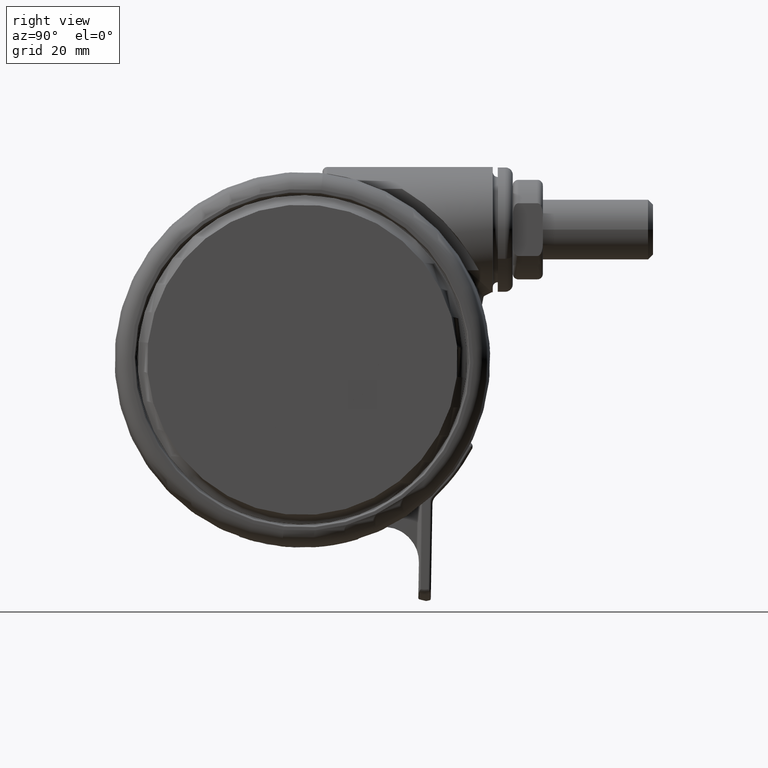
[diagram: clean part render]
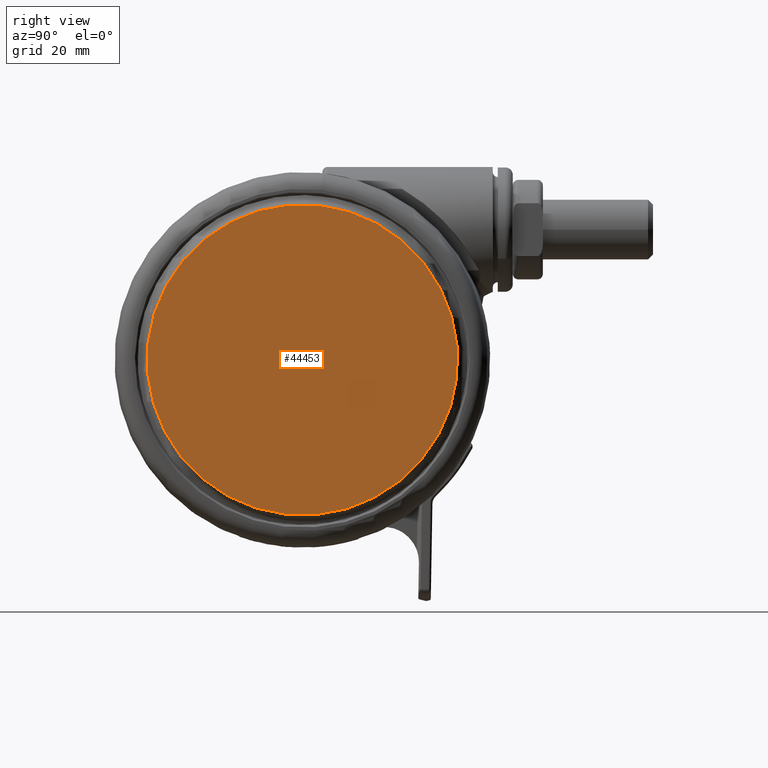
[diagram: same view with one face highlighted and labeled with its STEP entity id]
A machine part, right view. The second image highlights one B-rep face of the part: STEP entity #44453.
In plain terms, the highlighted planar face has unit normal (-1, -0, 0).
Its self-contained STEP definition (entity closure, byte-faithful):
#408 = VERTEX_POINT ( 'NONE', #9133 ) ;
#746 = DIRECTION ( 'NONE',  ( 0.0000000000000000000, 0.0000000000000000000, 1.000000000000000000 ) ) ;
#1655 = EDGE_CURVE ( 'NONE', #55538, #408, #50714, .T. ) ;
#8235 = CIRCLE ( 'NONE', #27096, 31.00000000000000000 ) ;
#8706 = CARTESIAN_POINT ( 'NONE',  ( 0.0000000000000000000, 31.00000000000000000, -1.301042606982605300E-015 ) ) ;
#9133 = CARTESIAN_POINT ( 'NONE',  ( 31.00000000000000000, 0.0000000000000000000, -1.301042606982605300E-015 ) ) ;
#14390 = DIRECTION ( 'NONE',  ( -1.000000000000000000, 0.0000000000000000000, 0.0000000000000000000 ) ) ;
#18173 = EDGE_CURVE ( 'NONE', #408, #55538, #8235, .T. ) ;
#19843 = PLANE ( 'NONE',  #42321 ) ;
#24902 = ORIENTED_EDGE ( 'NONE', *, *, #18173, .T. ) ;
#27096 = AXIS2_PLACEMENT_3D ( 'NONE', #66196, #32027, #71913 ) ;
#27315 = FACE_OUTER_BOUND ( 'NONE', #28548, .T. ) ;
#28548 = EDGE_LOOP ( 'NONE', ( #24902, #30083 ) ) ;
#30083 = ORIENTED_EDGE ( 'NONE', *, *, #1655, .T. ) ;
#32027 = DIRECTION ( 'NONE',  ( 0.0000000000000000000, 0.0000000000000000000, 1.000000000000000000 ) ) ;
#34822 = CARTESIAN_POINT ( 'NONE',  ( 0.0000000000000000000, 0.0000000000000000000, -1.301042606982605300E-015 ) ) ;
#40599 = DIRECTION ( 'NONE',  ( 1.000000000000000000, 0.0000000000000000000, 0.0000000000000000000 ) ) ;
#42321 = AXIS2_PLACEMENT_3D ( 'NONE', #8706, #48596, #14390 ) ;
#44453 = ADVANCED_FACE ( 'NONE', ( #27315 ), #19843, .F. ) ;
#46402 = CARTESIAN_POINT ( 'NONE',  ( -31.00000000000000000, 3.907598370292685700E-015, -1.301042606982605300E-015 ) ) ;
#48596 = DIRECTION ( 'NONE',  ( 0.0000000000000000000, 0.0000000000000000000, -1.000000000000000000 ) ) ;
#50714 = CIRCLE ( 'NONE', #58187, 31.00000000000000000 ) ;
#55538 = VERTEX_POINT ( 'NONE', #46402 ) ;
#58187 = AXIS2_PLACEMENT_3D ( 'NONE', #34822, #746, #40599 ) ;
#66196 = CARTESIAN_POINT ( 'NONE',  ( 0.0000000000000000000, 0.0000000000000000000, -1.301042606982605300E-015 ) ) ;
#71913 = DIRECTION ( 'NONE',  ( 1.000000000000000000, 0.0000000000000000000, 0.0000000000000000000 ) ) ;